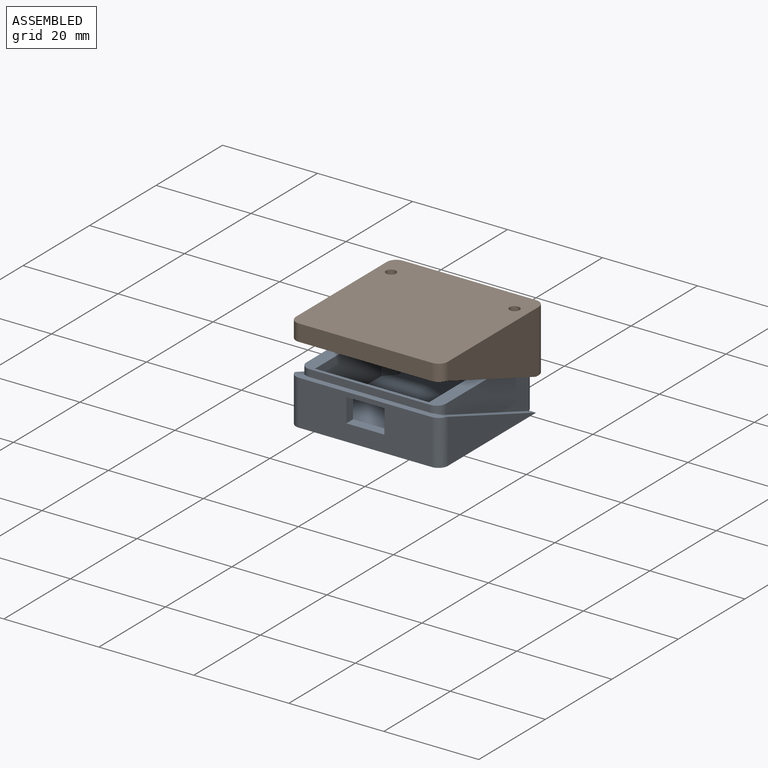
[diagram: assembled view]
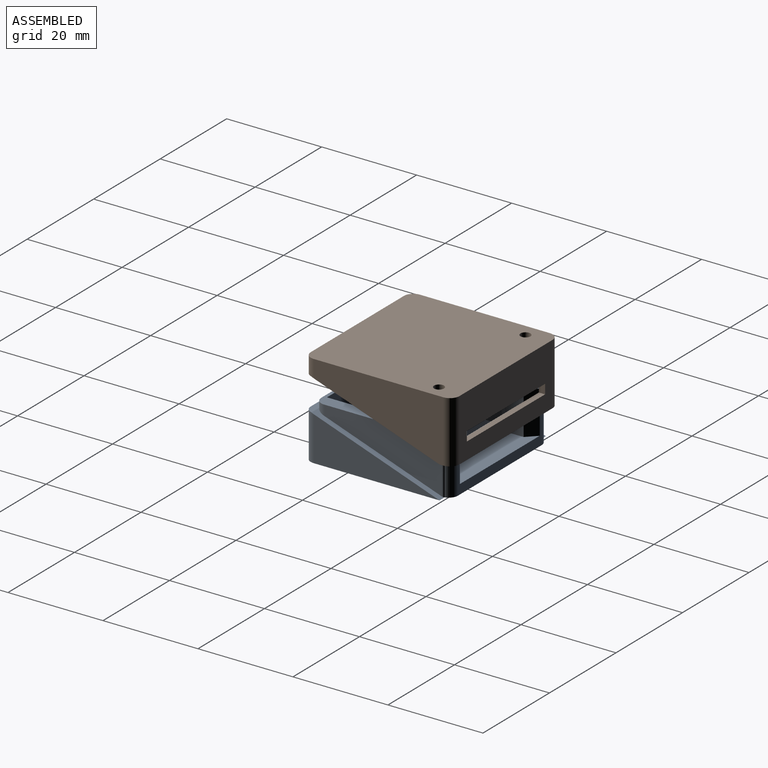
[diagram: assembled view, second angle]
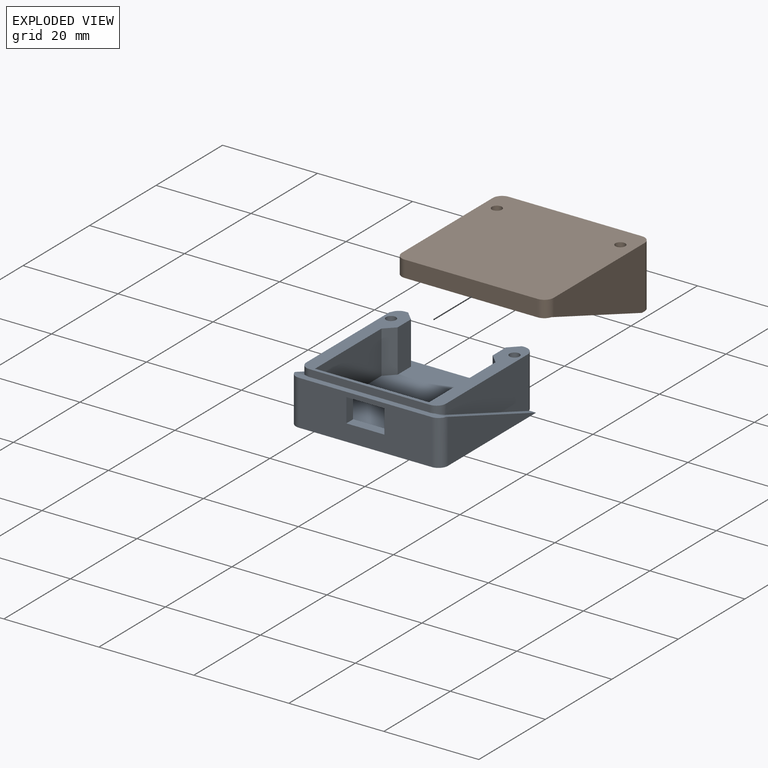
[diagram: exploded view]
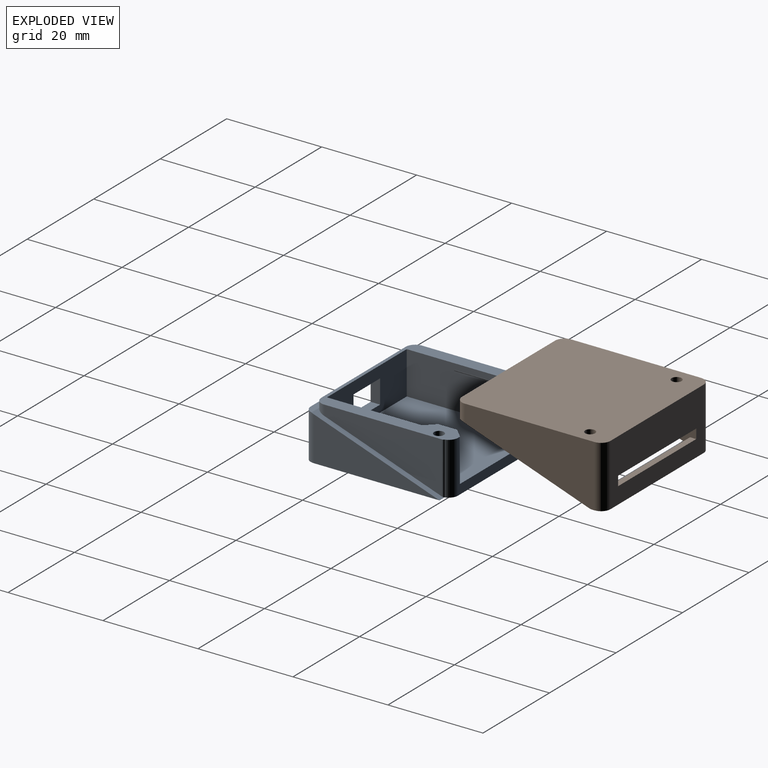
[diagram: exploded view, second angle]
ASSEMBLY  parts=2 mates=2
PART A: 38 faces, bbox 32x30x11 mm
  f0: plane 28x9.5mm, normal (0,-1,0), area 226mm2, adj f18,f22,f24,f25,f26,f27,f36,f37
  f1: plane 24x9mm, normal (0,1,0), area 176mm2, adj f5,f12,f15,f21,f24,f25,f26,f27
  f2: plane 26.5x9.32mm, normal (1,0,0), area 123.5mm2, adj f22,f28,f37
  f3: plane 24.8x10.86mm, normal (1,0,0), area 161.1mm2, adj f5,f28,f31,f34
  f4: plane 26.5x9.32mm, normal (-1,0,0), area 123.5mm2, adj f22,f29,f36
  f5: plane 29.4x28.7mm, normal (0,0,1), area 185mm2, adj f1,f3,f6,f7,f8,f9,f10,f11
  f6: plane 9x2mm, normal (0.71,-0.71,0), area 25.5mm2, adj f5,f7,f15,f21
  f7: plane 9x4mm, normal (1,0,0), area 36mm2, adj f5,f6,f8,f21
  f8: plane 9x2mm, normal (0.71,0.71,0), area 25.5mm2, adj f5,f7,f21,f23
  f9: plane 9x2mm, normal (-0.71,0.71,0), area 25.5mm2, adj f5,f10,f21,f23
  f10: plane 9x4mm, normal (-1,0,0), area 36mm2, adj f5,f9,f11,f21
  f11: plane 9x2mm, normal (-0.71,-0.71,0), area 25.5mm2, adj f5,f10,f12,f21
  f12: plane 20x9mm, normal (-1,0,0), area 180mm2, adj f1,f5,f11,f21
  f13: cylinder r=1.05mm len=9mm, axis (0,0,-1), area 59.4mm2, adj f5,f19
  f14: cylinder r=1.05mm len=9mm, axis (0,0,-1), area 59.4mm2, adj f5,f20
  f15: plane 20x9mm, normal (1,0,0), area 180mm2, adj f1,f5,f6,f21
  f16: plane 24.8x10.86mm, normal (-1,0,0), area 161.1mm2, adj f5,f29,f30,f35
  f17: plane 25.4x1.5mm, normal (0,-1,0), area 38.1mm2, adj f5,f18,f34,f35
  f18: plane 31.87x1.5mm, normal (0,0,1), area 41mm2, adj f0,f17,f28,f29,f34,f35,f36,f37
  f19: plane 2.1x2.1mm, normal (0,0,1), area 3.5mm2, adj f13
  f20: plane 2.1x2.1mm, normal (0,0,1), area 3.5mm2, adj f14
  f21: plane 28x24mm, normal (0,0,1), area 648mm2, adj f1,f6,f7,f8,f9,f10,f11,f12
  f22: plane 32x30mm, normal (0,0,-1), area 952.3mm2, adj f0,f2,f4,f23,f28,f29,f32,f33
  f23: plane 25.13x11mm, normal (0,1,0), area 60.4mm2, adj f5,f8,f9,f21,f22,f32,f33
  f24: plane 8x2mm, normal (0,0,-1), area 16mm2, adj f0,f1,f25,f27
  f25: plane 5x2mm, normal (1,0,0), area 10mm2, adj f0,f1,f24,f26
  f26: plane 8x2mm, normal (0,0,1), area 16mm2, adj f0,f1,f25,f27
  f27: plane 5x2mm, normal (-1,0,0), area 10mm2, adj f0,f1,f24,f26
  f28: plane 27.02x9.52mm, normal (0,0.33,0.94), area 37.8mm2, adj f2,f3,f18,f22,f31,f34,f37
  f29: plane 27.02x9.52mm, normal (0,0.33,0.94), area 37.8mm2, adj f4,f16,f18,f22,f30,f35,f36
  f30: cylinder r=0.5mm len=11mm, axis (0,0,1), area 5.1mm2, adj f5,f16,f29,f32
  f31: cylinder r=0.5mm len=11mm, axis (0,0,-1), area 5.1mm2, adj f3,f5,f28,f33
  f32: cylinder r=2mm len=11mm, axis (0,0,1), area 29mm2, adj f5,f22,f23,f30
  f33: cylinder r=2mm len=11mm, axis (0,0,-1), area 29mm2, adj f5,f22,f23,f31
  f34: cylinder r=2mm len=2.13mm, axis (0,0,-1), area 5.3mm2, adj f3,f5,f17,f18,f28
  f35: cylinder r=2mm len=2.13mm, axis (0,0,1), area 5.3mm2, adj f5,f16,f17,f18,f29
  f36: cylinder r=2mm len=9.5mm, axis (0,0,-1), area 29.8mm2, adj f0,f4,f18,f22,f29
  f37: cylinder r=2mm len=9.5mm, axis (0,0,1), area 29.8mm2, adj f0,f2,f18,f22,f28
PART B: 28 faces, bbox 32x31.3x13 mm
  f0: plane 25.4x11mm, normal (0,-1,0), area 232.4mm2, adj f5,f13,f14,f15,f16,f17,f21,f27
  f1: plane 28x13mm, normal (0,1,0), area 317mm2, adj f4,f13,f14,f15,f16,f17,f22,f23
  f2: cylinder r=1.05mm len=2.1mm, axis (0,0,-1), area 13.2mm2, adj f4,f5
  f3: cylinder r=1.05mm len=2.1mm, axis (0,0,-1), area 13.2mm2, adj f4,f5
  f4: plane 32x31.3mm, normal (0,0,1), area 991.2mm2, adj f1,f2,f3,f10,f11,f12,f22,f23
  f5: plane 29.4x28.7mm, normal (0,0,-1), area 833.4mm2, adj f0,f2,f3,f6,f7,f8,f20,f21
  f6: plane 24.7x10.82mm, normal (1,0,0), area 160mm2, adj f5,f18,f20,f21
  f7: plane 25.4x1.5mm, normal (0,1,0), area 38.1mm2, adj f5,f9,f20,f26
  f8: plane 24.7x10.82mm, normal (-1,0,0), area 160mm2, adj f5,f19,f26,f27
  f9: plane 31.87x1.5mm, normal (0,0,-1), area 41mm2, adj f7,f12,f18,f19,f20,f24,f25,f26
  f10: plane 27.3x13mm, normal (1,0,0), area 231.4mm2, adj f4,f13,f19,f22,f24
  f11: plane 27.3x13mm, normal (-1,0,0), area 231.4mm2, adj f4,f13,f18,f23,f25
  f12: plane 28x3.5mm, normal (0,-1,0), area 98mm2, adj f4,f9,f24,f25
  f13: plane 32x2.8mm, normal (0,0,-1), area 45.5mm2, adj f0,f1,f10,f11,f18,f19,f21,f22
  f14: plane 2x1.3mm, normal (1,0,0), area 2.6mm2, adj f0,f1,f15,f17
  f15: plane 23.5x1.3mm, normal (0,0,1), area 30.5mm2, adj f0,f1,f14,f16
  f16: plane 2x1.3mm, normal (-1,0,0), area 2.6mm2, adj f0,f1,f15,f17
  f17: plane 23.5x1.3mm, normal (0,0,-1), area 30.5mm2, adj f0,f1,f14,f16
  f18: plane 27x9.5mm, normal (0,-0.33,-0.94), area 37.8mm2, adj f6,f9,f11,f13,f20,f21,f25
  f19: plane 27x9.5mm, normal (0,-0.33,-0.94), area 37.8mm2, adj f8,f9,f10,f13,f24,f26,f27
  f20: cylinder r=2mm len=2.13mm, axis (0,0,1), area 5.3mm2, adj f5,f6,f7,f9,f18
  f21: cylinder r=2mm len=11mm, axis (0,0,-1), area 34.5mm2, adj f0,f5,f6,f13,f18
  f22: cylinder r=2mm len=13mm, axis (0,0,-1), area 40.8mm2, adj f1,f4,f10,f13
  f23: cylinder r=2mm len=13mm, axis (0,0,1), area 40.8mm2, adj f1,f4,f11,f13
  f24: cylinder r=2mm len=3.68mm, axis (0,0,1), area 11mm2, adj f4,f9,f10,f12,f19
  f25: cylinder r=2mm len=3.68mm, axis (0,0,-1), area 11mm2, adj f4,f9,f11,f12,f18
  f26: cylinder r=2mm len=2.13mm, axis (0,0,-1), area 5.3mm2, adj f5,f7,f8,f9,f19
  f27: cylinder r=2mm len=11mm, axis (0,0,1), area 34.5mm2, adj f0,f5,f8,f13,f19
PLACE A t=(-8.18,18.12,-7.8)mm
PLACE B t=(-8.18,14.05,8.03)mm
MATE planar A.f23 <-> B.f0  axis (0,1,0) through (-8.18,21.82,-7.88)mm
MATE planar B.f8 <-> A.f3  axis (-1,0,0) through (6.52,10.23,4.31)mm
